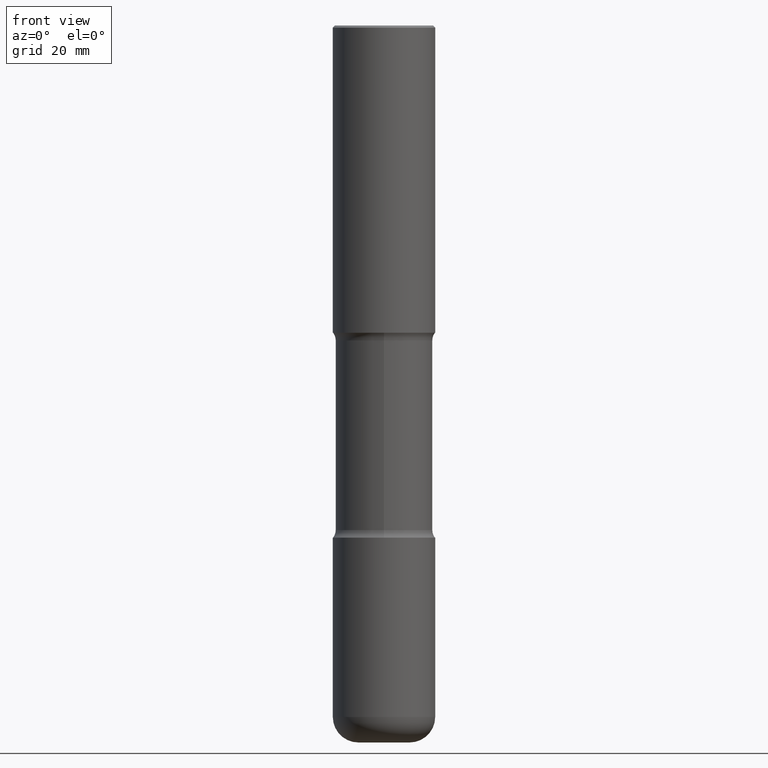
[diagram: clean part render]
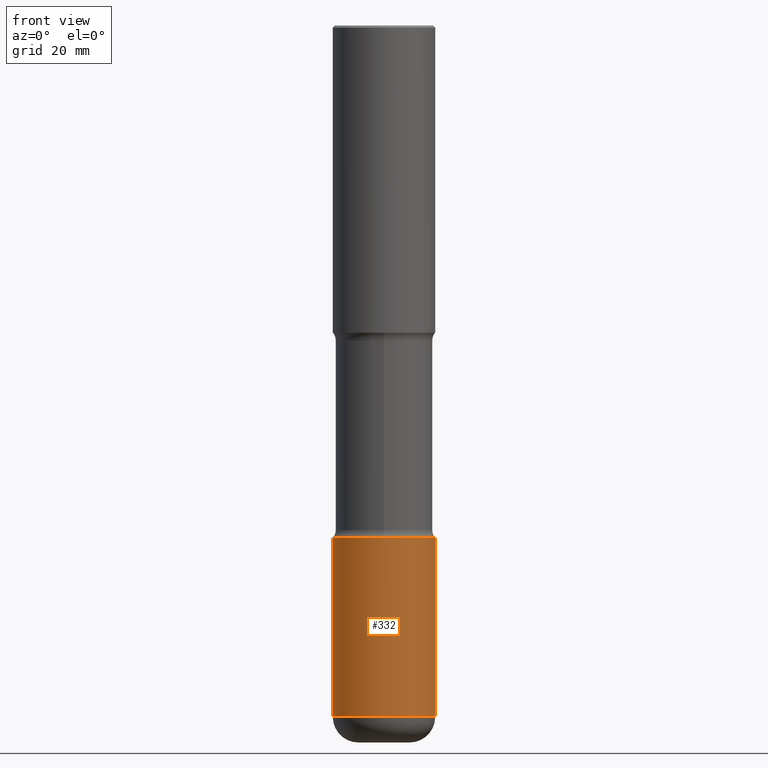
[diagram: same view with one face highlighted and labeled with its STEP entity id]
A machine part, front view. The second image highlights one B-rep face of the part: STEP entity #332.
In plain terms, the highlighted cylindrical surface (partial cylindrical patch) has radius 12.7 mm, axis along (-0, 0, 1).
Its self-contained STEP definition (entity closure, byte-faithful):
#10 = VECTOR ( 'NONE', #517, 39.37007874015748143 ) ;
#22 = CARTESIAN_POINT ( 'NONE',  ( 0.000000000000000000, 0.000000000000000000, 0.000000000000000000 ) ) ;
#66 = ORIENTED_EDGE ( 'NONE', *, *, #179, .F. ) ;
#74 = ORIENTED_EDGE ( 'NONE', *, *, #196, .T. ) ;
#90 = CARTESIAN_POINT ( 'NONE',  ( -0.5000000000000004441, 3.552713678800504085E-15, -2.459467545127455133E-29 ) ) ;
#92 = DIRECTION ( 'NONE',  ( -2.445468806185136877E-29, 3.491481338843145188E-15, 1.000000000000000000 ) ) ;
#101 = VERTEX_POINT ( 'NONE', #218 ) ;
#116 = CYLINDRICAL_SURFACE ( 'NONE', #386, 0.5000000000000004441 ) ;
#123 = ORIENTED_EDGE ( 'NONE', *, *, #496, .F. ) ;
#126 = DIRECTION ( 'NONE',  ( -2.445468806185136597E-29, 3.491481338843145583E-15, 1.000000000000000000 ) ) ;
#153 = CARTESIAN_POINT ( 'NONE',  ( -0.5000000000000002220, -1.695973918690297853E-14, -4.999999999999999112 ) ) ;
#179 = EDGE_CURVE ( 'NONE', #198, #408, #351, .T. ) ;
#196 = EDGE_CURVE ( 'NONE', #198, #277, #501, .T. ) ;
#198 = VERTEX_POINT ( 'NONE', #523 ) ;
#218 = CARTESIAN_POINT ( 'NONE',  ( 0.5000000000000002220, -2.094888803305886009E-14, -4.999999999999999112 ) ) ;
#237 = FACE_OUTER_BOUND ( 'NONE', #452, .T. ) ;
#242 = DIRECTION ( 'NONE',  ( -2.445468806185136597E-29, 3.491481338843145583E-15, 1.000000000000000000 ) ) ;
#246 = VECTOR ( 'NONE', #92, 39.37007874015748143 ) ;
#252 = ORIENTED_EDGE ( 'NONE', *, *, #447, .T. ) ;
#261 = DIRECTION ( 'NONE',  ( -2.445468806185136597E-29, 3.491481338843145583E-15, 1.000000000000000000 ) ) ;
#277 = VERTEX_POINT ( 'NONE', #356 ) ;
#299 = DIRECTION ( 'NONE',  ( 1.000000000000000000, -6.982962677686262766E-15, 0.000000000000000000 ) ) ;
#332 = ADVANCED_FACE ( 'NONE', ( #237 ), #116, .T. ) ;
#351 = LINE ( 'NONE', #90, #246 ) ;
#356 = CARTESIAN_POINT ( 'NONE',  ( 0.5000000000000007772, -2.705898037603436870E-14, -6.750000000000000888 ) ) ;
#375 = CARTESIAN_POINT ( 'NONE',  ( 0.5000000000000004441, -3.491481338843136511E-15, 2.438088387897969858E-29 ) ) ;
#386 = AXIS2_PLACEMENT_3D ( 'NONE', #22, #242, #504 ) ;
#395 = AXIS2_PLACEMENT_3D ( 'NONE', #516, #126, #299 ) ;
#408 = VERTEX_POINT ( 'NONE', #153 ) ;
#435 = DIRECTION ( 'NONE',  ( 1.000000000000000000, -6.982962677686263555E-15, 0.000000000000000000 ) ) ;
#437 = CARTESIAN_POINT ( 'NONE',  ( 1.222734403092568074E-28, -1.745740669421572673E-14, -4.999999999999999112 ) ) ;
#447 = EDGE_CURVE ( 'NONE', #277, #101, #454, .T. ) ;
#448 = CIRCLE ( 'NONE', #509, 0.5000000000000002220 ) ;
#452 = EDGE_LOOP ( 'NONE', ( #66, #74, #252, #123 ) ) ;
#454 = LINE ( 'NONE', #375, #10 ) ;
#496 = EDGE_CURVE ( 'NONE', #408, #101, #448, .T. ) ;
#501 = CIRCLE ( 'NONE', #395, 0.5000000000000005551 ) ;
#504 = DIRECTION ( 'NONE',  ( 1.000000000000000000, -6.982962677686266711E-15, 4.876176775795935232E-29 ) ) ;
#509 = AXIS2_PLACEMENT_3D ( 'NONE', #437, #261, #435 ) ;
#516 = CARTESIAN_POINT ( 'NONE',  ( 1.650691444174967427E-28, -2.356749903719123535E-14, -6.750000000000000888 ) ) ;
#517 = DIRECTION ( 'NONE',  ( -2.445468806185136877E-29, 3.491481338843145188E-15, 1.000000000000000000 ) ) ;
#523 = CARTESIAN_POINT ( 'NONE',  ( -0.5000000000000007772, -2.001478535839073126E-14, -6.750000000000000888 ) ) ;